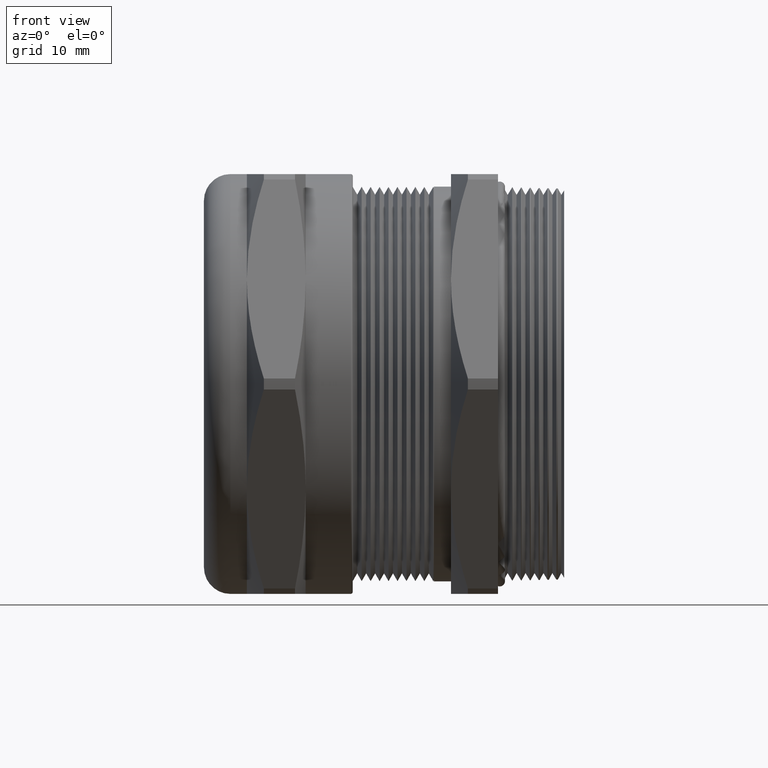
[diagram: clean part render]
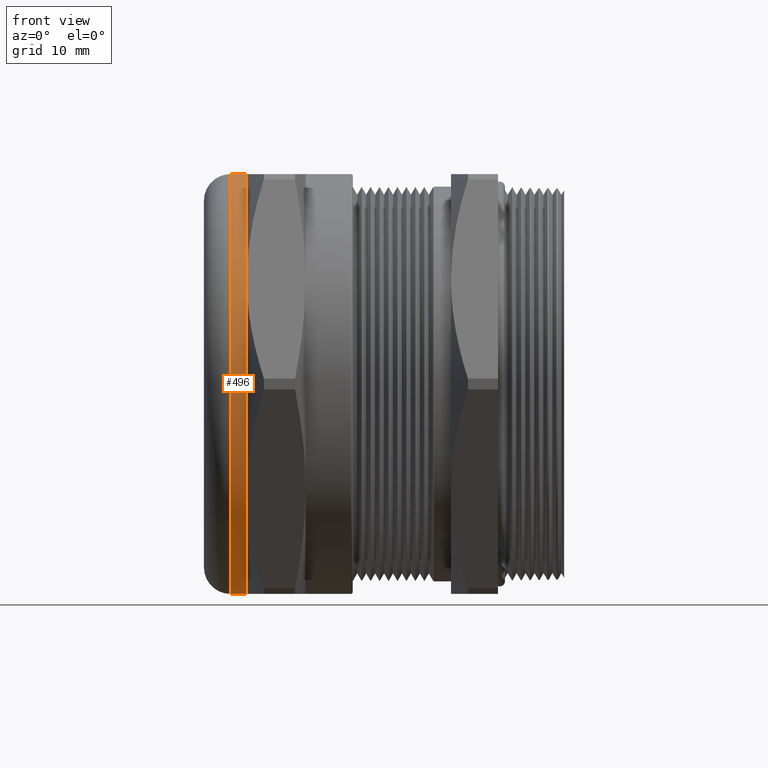
[diagram: same view with one face highlighted and labeled with its STEP entity id]
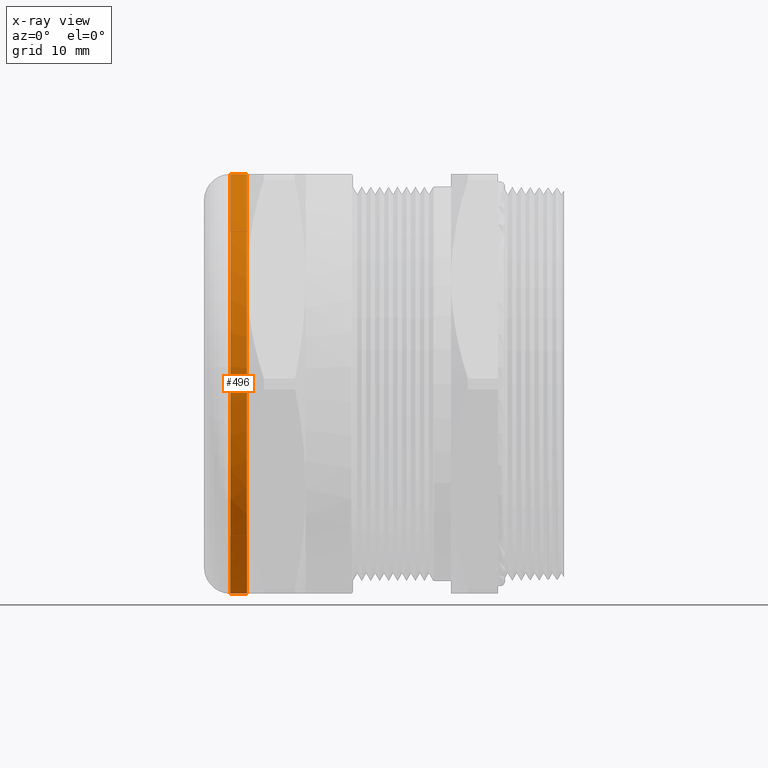
[diagram: x-ray of the same camera — body ghosted, the highlighted face saturated]
A machine part, front view. The second image highlights one B-rep face of the part: STEP entity #496.
The next image is the same camera in x-ray: the body ghosted, the highlighted face saturated — about 0% of this face is hidden behind the body in this view.
In plain terms, the highlighted cylindrical surface (partial cylindrical patch) has radius 25.019 mm, axis along (-1, 0, 0).
Its self-contained STEP definition (entity closure, byte-faithful):
#307 = VERTEX_POINT ( 'NONE', #1344 ) ;
#339 = VERTEX_POINT ( 'NONE', #1419 ) ;
#340 = VERTEX_POINT ( 'NONE', #1418 ) ;
#376 = VERTEX_POINT ( 'NONE', #1525 ) ;
#378 = EDGE_CURVE ( 'NONE', #376, #340, #1524, .T. ) ;
#381 = EDGE_CURVE ( 'NONE', #307, #339, #1520, .T. ) ;
#426 = EDGE_CURVE ( 'NONE', #4140, #4365, #1614, .T. ) ;
#427 = ORIENTED_EDGE ( 'NONE', *, *, #428, .T. ) ;
#428 = EDGE_CURVE ( 'NONE', #4365, #307, #1609, .T. ) ;
#480 = ORIENTED_EDGE ( 'NONE', *, *, #381, .T. ) ;
#481 = ORIENTED_EDGE ( 'NONE', *, *, #482, .T. ) ;
#482 = EDGE_CURVE ( 'NONE', #339, #340, #1708, .T. ) ;
#496 = ADVANCED_FACE ( 'NONE', ( #1750 ), #1749, .T. ) ;
#497 = EDGE_LOOP ( 'NONE', ( #498, #499, #501, #427, #480, #481 ) ) ;
#498 = ORIENTED_EDGE ( 'NONE', *, *, #378, .F. ) ;
#499 = ORIENTED_EDGE ( 'NONE', *, *, #500, .T. ) ;
#500 = EDGE_CURVE ( 'NONE', #376, #4140, #1748, .T. ) ;
#501 = ORIENTED_EDGE ( 'NONE', *, *, #426, .T. ) ;
#1344 = CARTESIAN_POINT ( 'NONE',  ( -0.6434999999999998500, 0.0000000000000000000, 0.9850000000000001000 ) ) ;
#1418 = CARTESIAN_POINT ( 'NONE',  ( -0.7207999999999998900, 1.206277097160143100E-016, -0.9849999999999999900 ) ) ;
#1419 = CARTESIAN_POINT ( 'NONE',  ( -0.7207999999999998900, 0.0000000000000000000, 0.9849999999999999900 ) ) ;
#1517 = DIRECTION ( 'NONE',  ( -1.000000000000000000, 0.0000000000000000000, 0.0000000000000000000 ) ) ;
#1518 = VECTOR ( 'NONE', #1517, 39.37007874015748100 ) ;
#1519 = CARTESIAN_POINT ( 'NONE',  ( -2.719493435091831800, 0.0000000000000000000, 0.9849999999999999900 ) ) ;
#1520 = LINE ( 'NONE', #1519, #1518 ) ;
#1521 = DIRECTION ( 'NONE',  ( -1.000000000000000000, 0.0000000000000000000, 0.0000000000000000000 ) ) ;
#1522 = VECTOR ( 'NONE', #1521, 39.37007874015748100 ) ;
#1523 = CARTESIAN_POINT ( 'NONE',  ( -2.719493435091831800, 1.206277097160143100E-016, -0.9849999999999999900 ) ) ;
#1524 = LINE ( 'NONE', #1523, #1522 ) ;
#1525 = CARTESIAN_POINT ( 'NONE',  ( -0.6434999999999998500, 0.0000000000000000000, -0.9849999999999997600 ) ) ;
#1605 = DIRECTION ( 'NONE',  ( 0.0000000000000000000, 0.0000000000000000000, 1.000000000000000000 ) ) ;
#1606 = DIRECTION ( 'NONE',  ( -1.000000000000000000, 0.0000000000000000000, 0.0000000000000000000 ) ) ;
#1607 = CARTESIAN_POINT ( 'NONE',  ( -0.6434999999999998500, 0.0000000000000000000, 0.0000000000000000000 ) ) ;
#1608 = AXIS2_PLACEMENT_3D ( 'NONE', #1607, #1606, #1605 ) ;
#1609 = CIRCLE ( 'NONE', #1608, 0.9849999999999999900 ) ;
#1610 = DIRECTION ( 'NONE',  ( 0.0000000000000000000, 0.0000000000000000000, 1.000000000000000000 ) ) ;
#1611 = DIRECTION ( 'NONE',  ( -1.000000000000000000, 0.0000000000000000000, 0.0000000000000000000 ) ) ;
#1612 = CARTESIAN_POINT ( 'NONE',  ( -0.6434999999999998500, 0.0000000000000000000, 0.0000000000000000000 ) ) ;
#1613 = AXIS2_PLACEMENT_3D ( 'NONE', #1612, #1611, #1610 ) ;
#1614 = CIRCLE ( 'NONE', #1613, 0.9849999999999999900 ) ;
#1705 = DIRECTION ( 'NONE',  ( 0.0000000000000000000, 0.0000000000000000000, -1.000000000000000000 ) ) ;
#1706 = DIRECTION ( 'NONE',  ( 1.000000000000000000, 0.0000000000000000000, 0.0000000000000000000 ) ) ;
#1707 = AXIS2_PLACEMENT_3D ( 'NONE', #1713, #1706, #1705 ) ;
#1708 = CIRCLE ( 'NONE', #1707, 0.9849999999999999900 ) ;
#1713 = CARTESIAN_POINT ( 'NONE',  ( -0.7207999999999998900, 0.0000000000000000000, 0.0000000000000000000 ) ) ;
#1740 = DIRECTION ( 'NONE',  ( 0.0000000000000000000, 0.0000000000000000000, 1.000000000000000000 ) ) ;
#1741 = DIRECTION ( 'NONE',  ( -1.000000000000000000, 0.0000000000000000000, 0.0000000000000000000 ) ) ;
#1742 = CARTESIAN_POINT ( 'NONE',  ( -0.6434999999999998500, 0.0000000000000000000, 0.0000000000000000000 ) ) ;
#1743 = AXIS2_PLACEMENT_3D ( 'NONE', #1742, #1741, #1740 ) ;
#1744 = DIRECTION ( 'NONE',  ( 0.0000000000000000000, 0.0000000000000000000, 1.000000000000000000 ) ) ;
#1745 = DIRECTION ( 'NONE',  ( -1.000000000000000000, 0.0000000000000000000, 0.0000000000000000000 ) ) ;
#1746 = CARTESIAN_POINT ( 'NONE',  ( -2.719493435091831800, 0.0000000000000000000, 0.0000000000000000000 ) ) ;
#1747 = AXIS2_PLACEMENT_3D ( 'NONE', #1746, #1745, #1744 ) ;
#1748 = CIRCLE ( 'NONE', #1743, 0.9849999999999999900 ) ;
#1749 = CYLINDRICAL_SURFACE ( 'NONE', #1747, 0.9849999999999999900 ) ;
#1750 = FACE_OUTER_BOUND ( 'NONE', #497, .T. ) ;
#3044 = CARTESIAN_POINT ( 'NONE',  ( -0.6434999999999998500, -0.8530350227276722900, -0.4925000000000004400 ) ) ;
#3517 = CARTESIAN_POINT ( 'NONE',  ( -0.6434999999999998500, -0.8530350227276718400, 0.4925000000000001600 ) ) ;
#4140 = VERTEX_POINT ( 'NONE', #3044 ) ;
#4365 = VERTEX_POINT ( 'NONE', #3517 ) ;